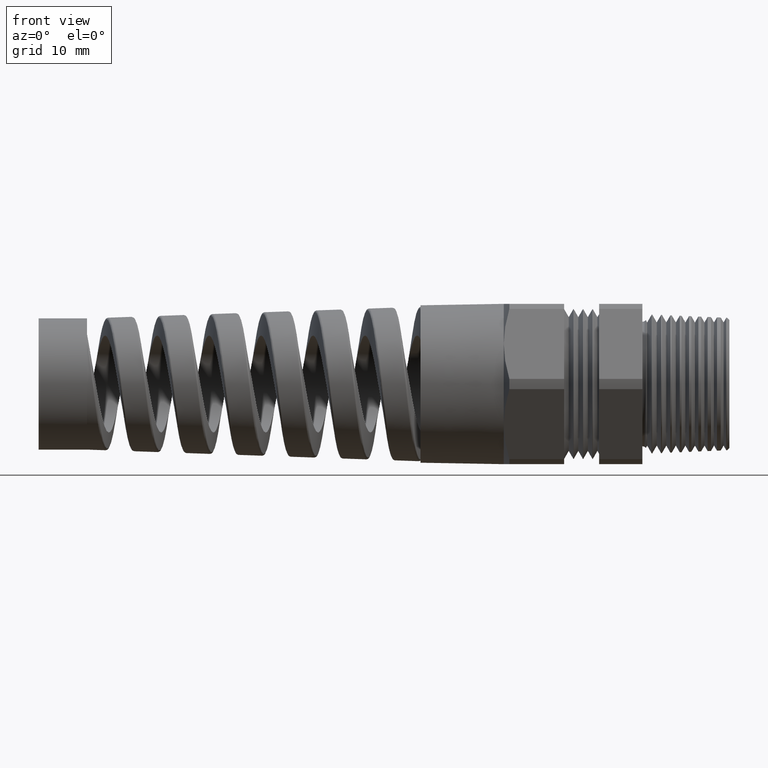
[diagram: clean part render]
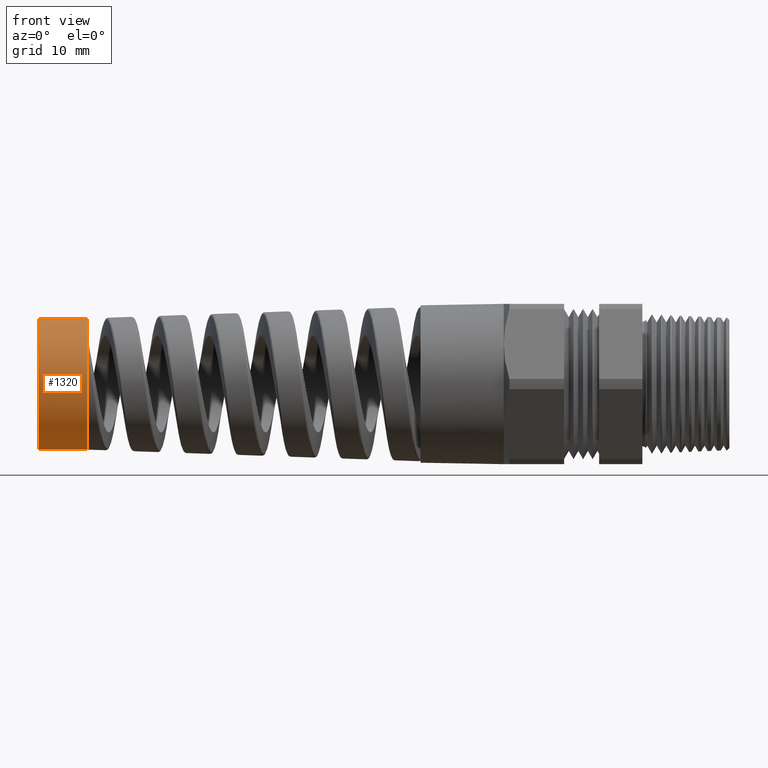
[diagram: same view with one face highlighted and labeled with its STEP entity id]
A machine part, front view. The second image highlights one B-rep face of the part: STEP entity #1320.
In plain terms, the highlighted cylindrical surface (partial cylindrical patch) has radius 9.7693 mm, axis along (1, 0, 0).
Its self-contained STEP definition (entity closure, byte-faithful):
#129 = VERTEX_POINT ( 'NONE', #1390 ) ;
#130 = VERTEX_POINT ( 'NONE', #1389 ) ;
#132 = EDGE_CURVE ( 'NONE', #129, #133, #7610, .T. ) ;
#133 = VERTEX_POINT ( 'NONE', #1447 ) ;
#184 = EDGE_CURVE ( 'NONE', #130, #212, #1597, .T. ) ;
#212 = VERTEX_POINT ( 'NONE', #1749 ) ;
#1248 = ORIENTED_EDGE ( 'NONE', *, *, #1265, .F. ) ;
#1249 = ORIENTED_EDGE ( 'NONE', *, *, #184, .T. ) ;
#1250 = ORIENTED_EDGE ( 'NONE', *, *, #7573, .F. ) ;
#1251 = ORIENTED_EDGE ( 'NONE', *, *, #1258, .T. ) ;
#1258 = EDGE_CURVE ( 'NONE', #7570, #133, #7813, .T. ) ;
#1265 = EDGE_CURVE ( 'NONE', #130, #129, #7869, .T. ) ;
#1320 = ADVANCED_FACE ( 'NONE', ( #10292 ), #10290, .T. ) ;
#1321 = EDGE_LOOP ( 'NONE', ( #1322, #1248, #1249, #1250, #1251 ) ) ;
#1322 = ORIENTED_EDGE ( 'NONE', *, *, #132, .F. ) ;
#1389 = CARTESIAN_POINT ( 'NONE',  ( -3.540000000000000000, 0.0000000000000000000, -0.3846171090515584400 ) ) ;
#1390 = CARTESIAN_POINT ( 'NONE',  ( -3.540000000000000000, 4.710201114972996000E-017, 0.3846171090515584400 ) ) ;
#1447 = CARTESIAN_POINT ( 'NONE',  ( -3.256800000000000100, 4.710201114972996000E-017, 0.3846171090515584400 ) ) ;
#1448 = DIRECTION ( 'NONE',  ( 1.000000000000000000, 0.0000000000000000000, 0.0000000000000000000 ) ) ;
#1449 = VECTOR ( 'NONE', #1448, 39.37007874015748100 ) ;
#1597 = LINE ( 'NONE', #1673, #1672 ) ;
#1671 = DIRECTION ( 'NONE',  ( 1.000000000000000000, 0.0000000000000000000, 0.0000000000000000000 ) ) ;
#1672 = VECTOR ( 'NONE', #1671, 39.37007874015748100 ) ;
#1673 = CARTESIAN_POINT ( 'NONE',  ( -3.540000000000000000, 0.0000000000000000000, -0.3846171090515584400 ) ) ;
#1749 = CARTESIAN_POINT ( 'NONE',  ( -3.256800000000000100, 0.0000000000000000000, -0.3846171090515572200 ) ) ;
#7570 = VERTEX_POINT ( 'NONE', #8182 ) ;
#7573 = EDGE_CURVE ( 'NONE', #7570, #212, #8174, .T. ) ;
#7610 = LINE ( 'NONE', #7611, #1449 ) ;
#7611 = CARTESIAN_POINT ( 'NONE',  ( -3.540000000000000000, 4.710201114972996000E-017, 0.3846171090515584400 ) ) ;
#7813 = CIRCLE ( 'NONE', #7846, 0.3846171090515584400 ) ;
#7825 = CARTESIAN_POINT ( 'NONE',  ( -3.540000000000000000, 0.0000000000000000000, 0.0000000000000000000 ) ) ;
#7829 = DIRECTION ( 'NONE',  ( 0.0000000000000000000, 0.0000000000000000000, 1.000000000000000000 ) ) ;
#7844 = DIRECTION ( 'NONE',  ( -1.000000000000000000, 0.0000000000000000000, 0.0000000000000000000 ) ) ;
#7845 = CARTESIAN_POINT ( 'NONE',  ( -3.256800000000000100, 0.0000000000000000000, 0.0000000000000000000 ) ) ;
#7846 = AXIS2_PLACEMENT_3D ( 'NONE', #7845, #7844, #7829 ) ;
#7866 = DIRECTION ( 'NONE',  ( 0.0000000000000000000, 0.0000000000000000000, 1.000000000000000000 ) ) ;
#7867 = DIRECTION ( 'NONE',  ( -1.000000000000000000, 0.0000000000000000000, 0.0000000000000000000 ) ) ;
#7868 = AXIS2_PLACEMENT_3D ( 'NONE', #7825, #7867, #7866 ) ;
#7869 = CIRCLE ( 'NONE', #7868, 0.3846171090515584400 ) ;
#8170 = DIRECTION ( 'NONE',  ( 0.0000000000000000000, 0.0000000000000000000, -1.000000000000000000 ) ) ;
#8171 = DIRECTION ( 'NONE',  ( 1.000000000000000000, 0.0000000000000000000, 0.0000000000000000000 ) ) ;
#8172 = CARTESIAN_POINT ( 'NONE',  ( -3.256800000000000100, 0.0000000000000000000, 0.0000000000000000000 ) ) ;
#8173 = AXIS2_PLACEMENT_3D ( 'NONE', #8172, #8171, #8170 ) ;
#8174 = CIRCLE ( 'NONE', #8173, 0.3846171090515572200 ) ;
#8182 = CARTESIAN_POINT ( 'NONE',  ( -3.256800000000000100, -0.2988133339120959100, 0.2421588570577518900 ) ) ;
#10287 = DIRECTION ( 'NONE',  ( 0.0000000000000000000, 0.0000000000000000000, -1.000000000000000000 ) ) ;
#10288 = DIRECTION ( 'NONE',  ( 1.000000000000000000, 0.0000000000000000000, 0.0000000000000000000 ) ) ;
#10289 = AXIS2_PLACEMENT_3D ( 'NONE', #10291, #10288, #10287 ) ;
#10290 = CYLINDRICAL_SURFACE ( 'NONE', #10289, 0.3846171090515584400 ) ;
#10291 = CARTESIAN_POINT ( 'NONE',  ( -3.540000000000000000, 0.0000000000000000000, 0.0000000000000000000 ) ) ;
#10292 = FACE_OUTER_BOUND ( 'NONE', #1321, .T. ) ;